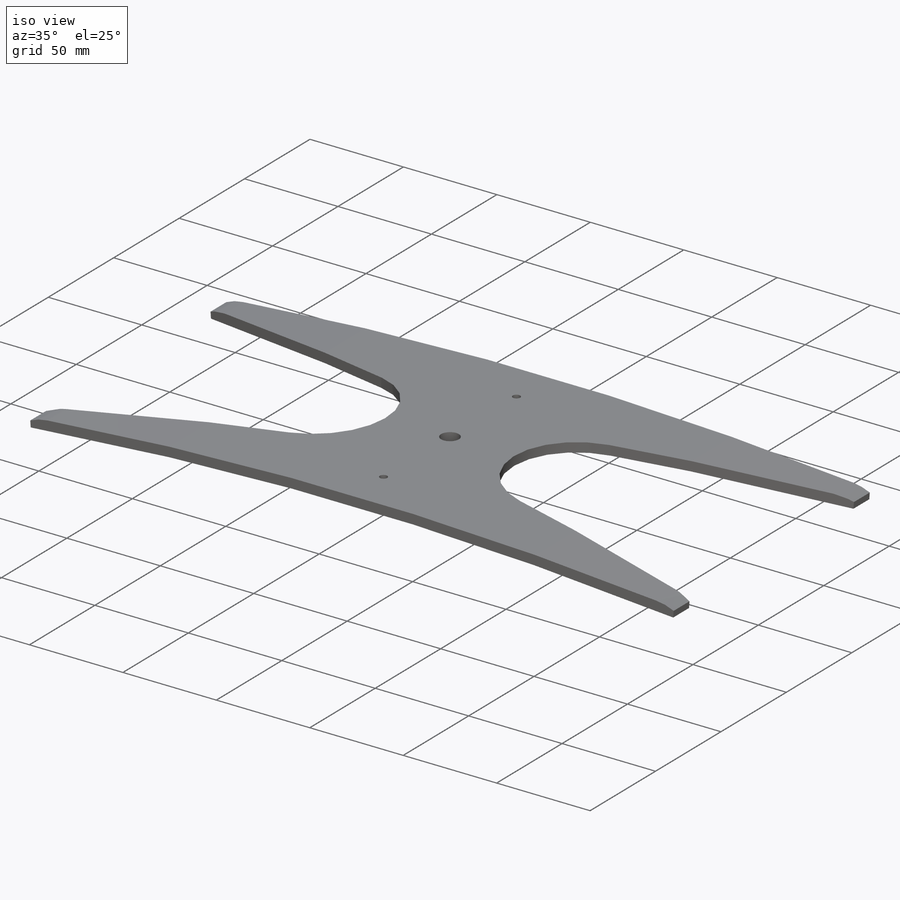
[diagram: iso view]
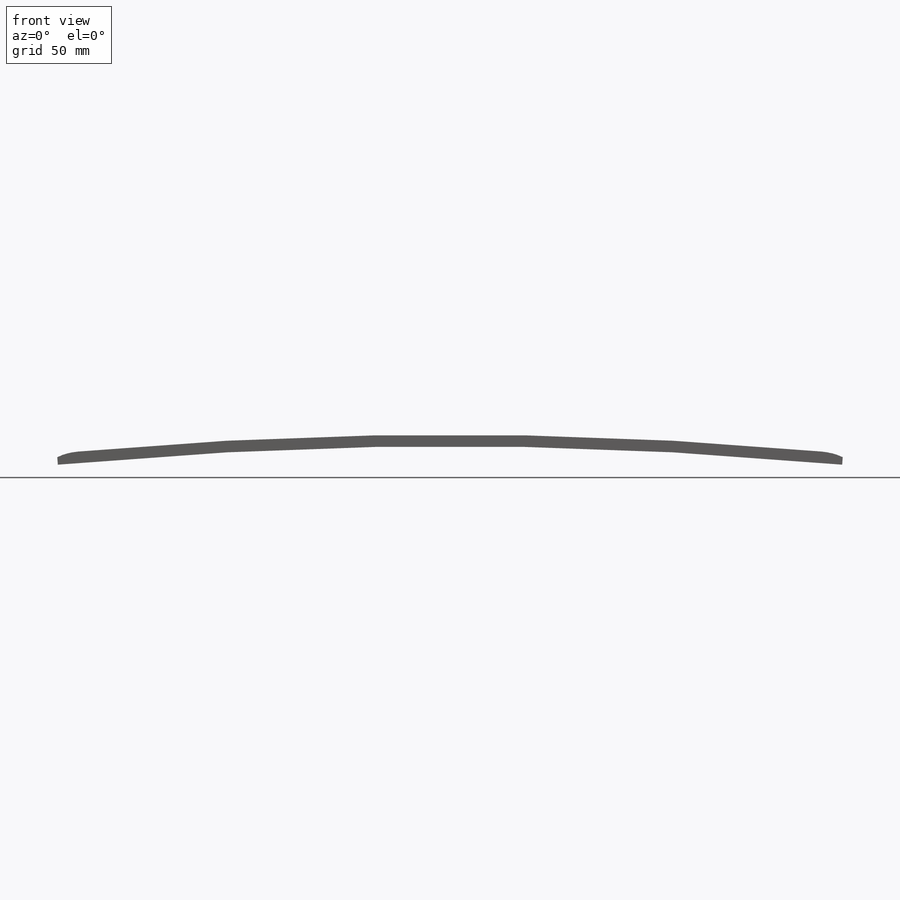
[diagram: front view]
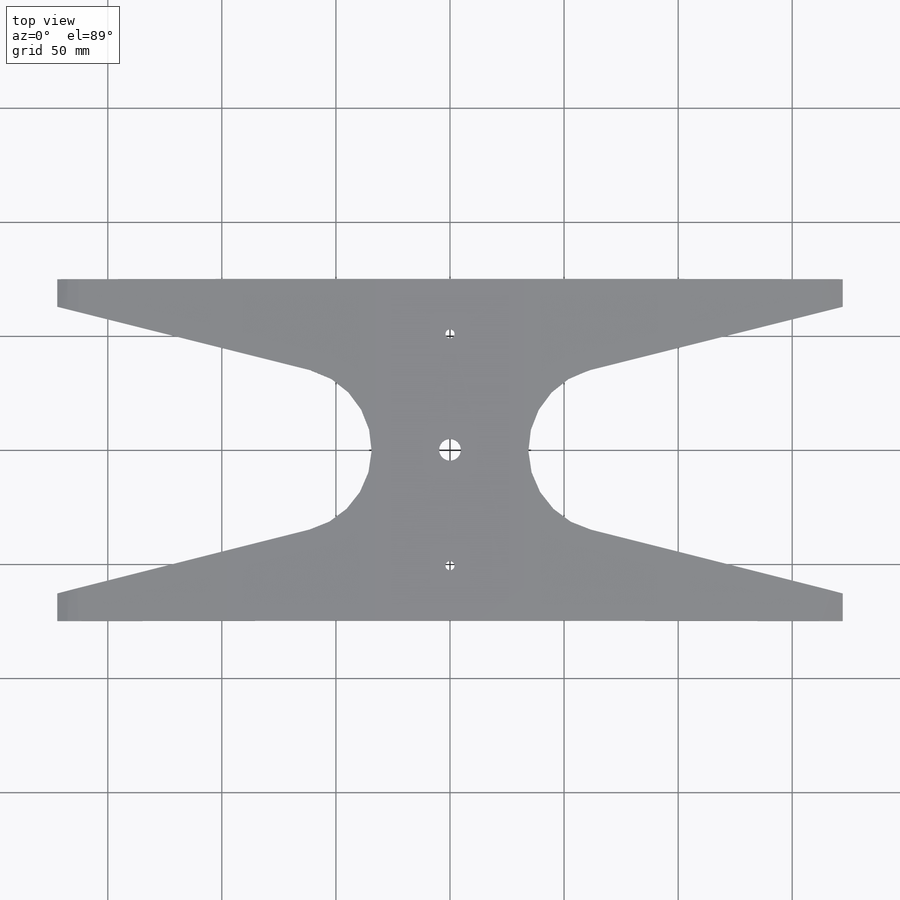
[diagram: top view]
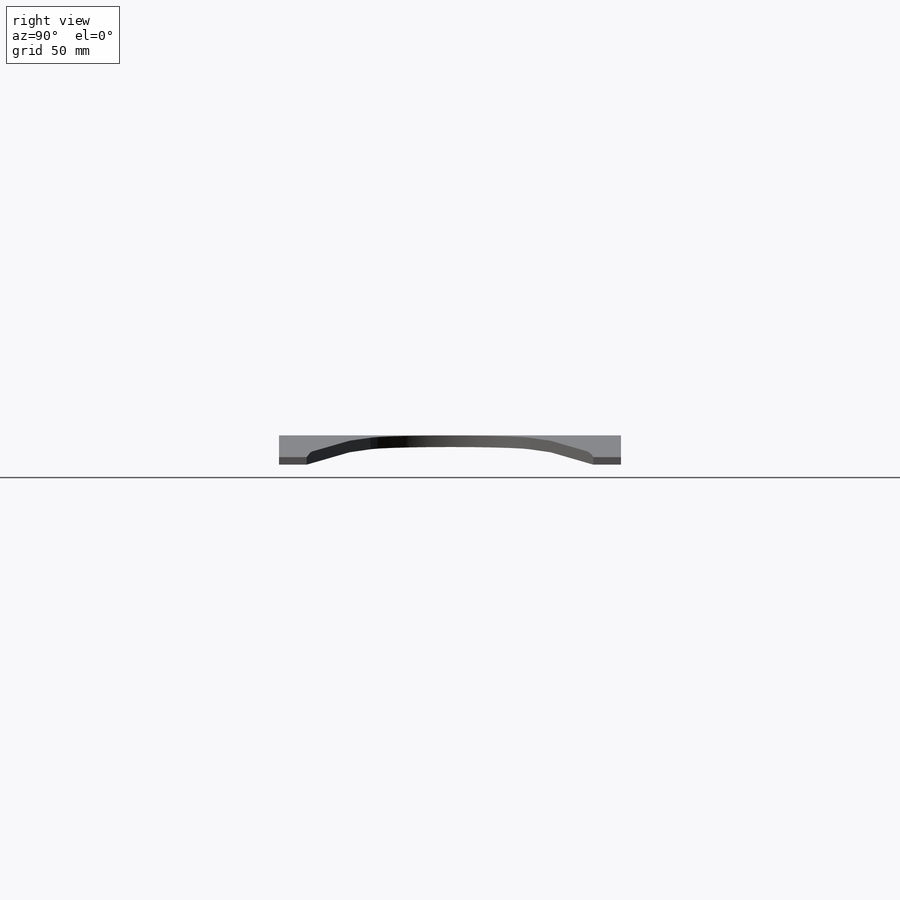
[diagram: right view]
SOLIDWORKS PART (.sldprt)
format: sldprt  version: not decoded by parser v0  size: 542,208 bytes
history: native  units: mm
features: sketch x6, hole x2, material x1, extrude x1, cut_extrude x1, mirror x1 (+11 scaffold rows collapsed)
feature tree (23):
  scaffold x11  (default folders/planes/origin — collapsed)
  material  "MARAGING STEEL C250"
  sketch  "Sketch6"  dims[c1.D1=21.59mm c1.D2=60.325mm c2.D1=63.5mm c2.D2=889.0mm c2.D3=917.575mm c2.D4=895.985mm c3.D2=904.24mm c3.D5=901.7mm c3.D6=906.78mm c4.D2=~1792.679422mm c4.D4=898.525mm c4.D7=917.575mm c4.D3=917.575mm c4.D9=2.54mm c4.D10=7.62mm c4.D1=25.4mm c4.D12=895.985mm c5.D2=75.438mm c5.D1=5.08mm c5.D5=8.255mm c5.D6=8.255mm c5.D7=152.4mm c6.D1=304.8mm c6.D5=5.08mm c7.D1=~313.195127mm c7.D6=~31.158395mm c8.D1=~73.03881mm c8.D6=330.2mm c8.D7=6.35mm c8.D8=7.62mm c8.D10=3.302mm c8.D11=~174.532925mm c9.D10=1.27mm c9.D11=~158.568571mm c10.D10=1.27mm c10.D11=~174.532925mm c10.D6=330.2mm c11.D10=~108.816431mm c11.D11=~24.260077mm c11.D6=~329.349592mm c11.D12=~329.349592mm c12.D6=330.2mm c12.D13=~1047.197551mm c12.D14=~17.488308mm c13.D13=~1047.197551mm c13.D14=~349.06585mm c13.D15=~25.440094mm c13.D16=2.54mm c14.D13=3.302mm c14.D6=1.0mm c14.D12=2.54mm]
  extrude  "Boss-Extrude1"  Depth=149.86mm
  sketch  "Sketch11"  dims[c1.D1=12.7mm c1.D2=2.54mm c1.D3=~12.098332mm c1.D4=~8.032185mm c2.D2=2.54mm c2.D1=34.29mm c2.D4=~496.444743mm]
  cut_extrude  "Cut-Extrude1"  [1 undecoded]
  mirror  "Mirror1"
  hole  "5/32 (0.15625) Diameter Hole1"  Diameter=3.96875mm Depth=5.08mm
  sketch  "Sketch13"  dims[D1=101.6mm]
  sketch  "Sketch12"  dims[hole-wizard template sketch: 40 standard entries collapsed; hole parameters kept: c6.Thru Hole Dia.=~3.96875mm c6.Thru Hole Depth=5.08mm c6.Near C'Sink Dia.=10.668mm c6.Near C'Sink Angle=~1745.329252mm]  [1 undecoded]
  hole  "3/8 (0.375) Diameter Hole1"  Diameter=9.525mm Depth=5.08mm
  sketch  "Sketch16"  dims[D1=101.6mm]
  sketch  "Sketch15"  dims[hole-wizard template sketch: 44 standard entries collapsed; hole parameters kept: c7.Thru Hole Dia.=9.525mm c7.Thru Hole Depth=5.08mm]
decode coverage: 9 of 11 modeling features carry decoded parameters
note: ~ marks probable driven/reference dimensions
note: 1 parameter value undecoded
note: suppression state not decoded; provenance and decode notes live in map.json
note: 1 required parameter value undecoded (feature->parameter linkage not recoverable at this tier; creation-order binding heuristic only, values carry confidence <= 0.55)
